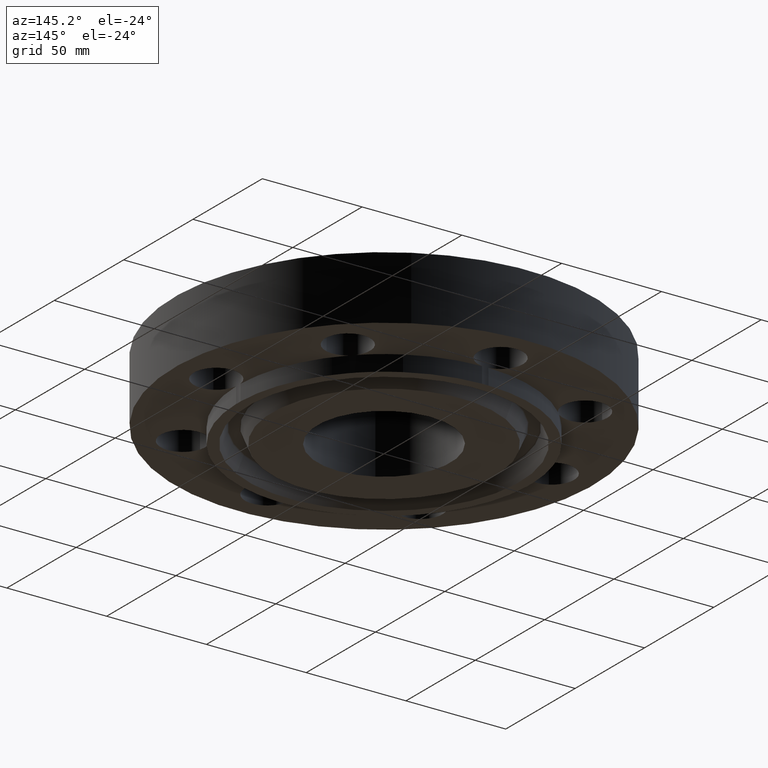
[diagram: clean part render]
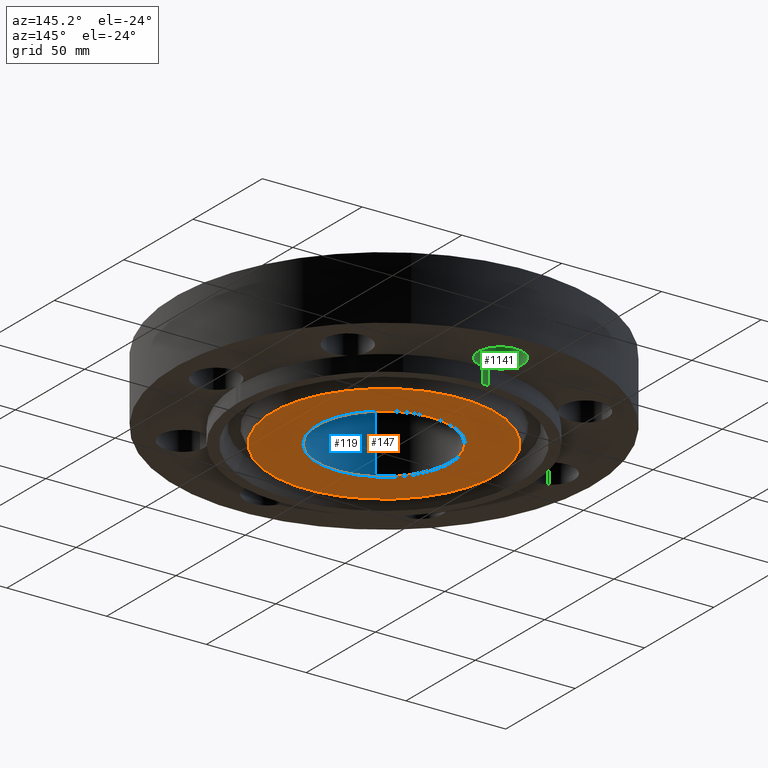
[diagram: same view with three faces highlighted in distinct colors, each labeled with its STEP entity id]
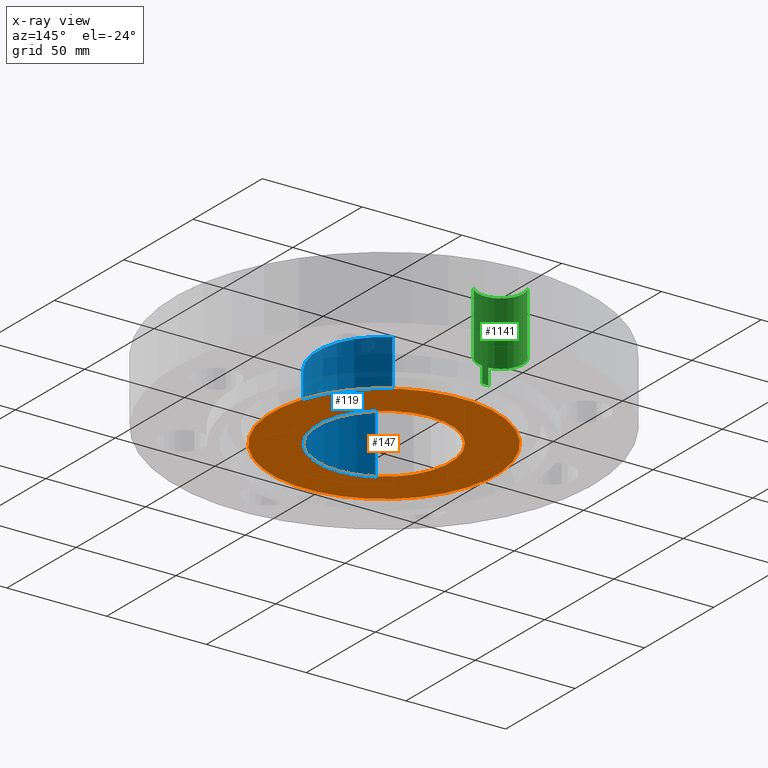
[diagram: x-ray of the same camera — body ghosted, the three highlighted faces saturated]
A machine part, auxiliary view with three faces highlighted in distinct colors.
The next image is the same camera in x-ray (body ghosted, the three faces saturated) — at least one of them is partly hidden behind the body in this view.
Their STEP definitions:

[orange] entity #147 — the highlighted planar face has unit normal (0, 0, -1).
#91=AXIS2_PLACEMENT_3D('Circle Axis2P3D',#89,#90,$) ;
#110=AXIS2_PLACEMENT_3D('Circle Axis2P3D',#108,#109,$) ;
#123=AXIS2_PLACEMENT_3D('Plane Axis2P3D',#120,#121,#122) ;
#127=AXIS2_PLACEMENT_3D('Circle Axis2P3D',#125,#126,$) ;
#136=AXIS2_PLACEMENT_3D('Circle Axis2P3D',#134,#135,$) ;
#86=CARTESIAN_POINT('Vertex',(-0.629006306651,-1.1513883212,-0.313000000001)) ;
#89=CARTESIAN_POINT('Axis2P3D Location',(0.,0.,-0.313000000001)) ;
#93=CARTESIAN_POINT('Vertex',(0.629006306651,1.1513883212,-0.313000000001)) ;
#108=CARTESIAN_POINT('Axis2P3D Location',(0.,0.,-0.313000000001)) ;
#120=CARTESIAN_POINT('Axis2P3D Location',(0.,1.31200000001,-0.313000000001)) ;
#125=CARTESIAN_POINT('Axis2P3D Location',(8.39223703654E-016,-2.79741234551E-016,-0.313000000001)) ;
#129=CARTESIAN_POINT('Vertex',(-1.05617446155,1.93331438385,-0.313000000001)) ;
#131=CARTESIAN_POINT('Vertex',(1.05617446155,-1.93331438385,-0.313000000001)) ;
#134=CARTESIAN_POINT('Axis2P3D Location',(0.,0.,-0.313000000001)) ;
#90=DIRECTION('Axis2P3D Direction',(0.,0.,-0.0393700787402)) ;
#109=DIRECTION('Axis2P3D Direction',(0.,0.,-0.0393700787402)) ;
#121=DIRECTION('Axis2P3D Direction',(0.,0.,-0.0393700787402)) ;
#122=DIRECTION('Axis2P3D XDirection',(0.0393700787402,0.,0.)) ;
#126=DIRECTION('Axis2P3D Direction',(0.,0.,-0.0393700787402)) ;
#135=DIRECTION('Axis2P3D Direction',(0.,0.,-0.0393700787402)) ;
#140=ORIENTED_EDGE('',*,*,#133,.T.) ;
#141=ORIENTED_EDGE('',*,*,#138,.T.) ;
#144=ORIENTED_EDGE('',*,*,#112,.F.) ;
#145=ORIENTED_EDGE('',*,*,#95,.F.) ;
#146=FACE_BOUND('',#143,.T.) ;
#147=ADVANCED_FACE('PartBody',(#142,#146),#124,.T.) ;
#92=CIRCLE('generated circle',#91,1.31200000001) ;
#111=CIRCLE('generated circle',#110,1.31200000001) ;
#128=CIRCLE('generated circle',#127,2.20300000001) ;
#137=CIRCLE('generated circle',#136,2.20300000001) ;
#95=EDGE_CURVE('',#87,#94,#92,.T.) ;
#112=EDGE_CURVE('',#94,#87,#111,.T.) ;
#133=EDGE_CURVE('',#130,#132,#128,.T.) ;
#138=EDGE_CURVE('',#132,#130,#137,.T.) ;
#139=EDGE_LOOP('',(#140,#141)) ;
#143=EDGE_LOOP('',(#144,#145)) ;
#142=FACE_OUTER_BOUND('',#139,.T.) ;
#124=PLANE('',#123) ;
#87=VERTEX_POINT('',#86) ;
#94=VERTEX_POINT('',#93) ;
#130=VERTEX_POINT('',#129) ;
#132=VERTEX_POINT('',#131) ;

[blue] entity #119 — the highlighted cylindrical surface (partial cylindrical patch) has radius 33.3248 mm, axis along (0, 0, -1).
#60=AXIS2_PLACEMENT_3D('Circle Axis2P3D',#58,#59,$) ;
#80=AXIS2_PLACEMENT_3D('Cylinder Axis2P3D',#77,#78,#79) ;
#110=AXIS2_PLACEMENT_3D('Circle Axis2P3D',#108,#109,$) ;
#58=CARTESIAN_POINT('Axis2P3D Location',(-3.1470888887E-016,-6.99353086378E-017,1.)) ;
#62=CARTESIAN_POINT('Vertex',(0.629006306651,1.1513883212,1.)) ;
#64=CARTESIAN_POINT('Vertex',(-0.629006306651,-1.1513883212,1.)) ;
#77=CARTESIAN_POINT('Axis2P3D Location',(0.,0.,0.748500000003)) ;
#82=CARTESIAN_POINT('Line Origine',(-0.629006306651,-1.1513883212,0.343500000001)) ;
#86=CARTESIAN_POINT('Vertex',(-0.629006306651,-1.1513883212,-0.313000000001)) ;
#93=CARTESIAN_POINT('Vertex',(0.629006306651,1.1513883212,-0.313000000001)) ;
#96=CARTESIAN_POINT('Line Origine',(0.629006306651,1.1513883212,0.343500000001)) ;
#108=CARTESIAN_POINT('Axis2P3D Location',(0.,0.,-0.313000000001)) ;
#59=DIRECTION('Axis2P3D Direction',(0.,0.,-0.0393700787402)) ;
#78=DIRECTION('Axis2P3D Direction',(0.,0.,-0.0393700787402)) ;
#79=DIRECTION('Axis2P3D XDirection',(0.0188750212049,0.0345504945626,0.)) ;
#83=DIRECTION('Vector Direction',(0.,0.,-0.0393700787402)) ;
#97=DIRECTION('Vector Direction',(0.,0.,-0.0393700787402)) ;
#109=DIRECTION('Axis2P3D Direction',(0.,0.,-0.0393700787402)) ;
#84=VECTOR('Line Direction',#83,0.0393700787402) ;
#98=VECTOR('Line Direction',#97,0.0393700787402) ;
#114=ORIENTED_EDGE('',*,*,#100,.T.) ;
#115=ORIENTED_EDGE('',*,*,#112,.T.) ;
#116=ORIENTED_EDGE('',*,*,#88,.F.) ;
#117=ORIENTED_EDGE('',*,*,#66,.F.) ;
#119=ADVANCED_FACE('PartBody',(#118),#81,.F.) ;
#61=CIRCLE('generated circle',#60,1.31200000001) ;
#111=CIRCLE('generated circle',#110,1.31200000001) ;
#81=CYLINDRICAL_SURFACE('generated cylinder',#80,1.31200000001) ;
#66=EDGE_CURVE('',#63,#65,#61,.T.) ;
#88=EDGE_CURVE('',#65,#87,#85,.T.) ;
#100=EDGE_CURVE('',#63,#94,#99,.T.) ;
#112=EDGE_CURVE('',#94,#87,#111,.T.) ;
#113=EDGE_LOOP('',(#114,#115,#116,#117)) ;
#118=FACE_OUTER_BOUND('',#113,.T.) ;
#85=LINE('Line',#82,#84) ;
#99=LINE('Line',#96,#98) ;
#63=VERTEX_POINT('',#62) ;
#65=VERTEX_POINT('',#64) ;
#87=VERTEX_POINT('',#86) ;
#94=VERTEX_POINT('',#93) ;

[green] entity #1141 — the highlighted cylindrical surface (edge-blend (fillet) strip) has radius 11.176 mm, axis along (0, -0, -1).
#293=AXIS2_PLACEMENT_3D('Circle Axis2P3D',#291,#292,$) ;
#670=AXIS2_PLACEMENT_3D('Circle Axis2P3D',#668,#669,$) ;
#684=AXIS2_PLACEMENT_3D('Circle Axis2P3D',#682,#683,$) ;
#1020=AXIS2_PLACEMENT_3D('Cylinder Axis2P3D',#1017,#1018,#1019) ;
#1128=AXIS2_PLACEMENT_3D('Circle Axis2P3D',#1126,#1127,$) ;
#288=CARTESIAN_POINT('Vertex',(-0.0616409036851,2.87433912388,-0.313000000001)) ;
#291=CARTESIAN_POINT('Axis2P3D Location',(-3.49676543189E-017,3.31000000001,-0.313000000001)) ;
#295=CARTESIAN_POINT('Vertex',(0.0616409036851,2.87433912388,-0.313000000001)) ;
#542=CARTESIAN_POINT('Vertex',(-0.0616409036851,2.87433912388,2.79741234551E-016)) ;
#545=CARTESIAN_POINT('Line Origine',(-0.0616409036851,2.87433912388,-0.156500000001)) ;
#566=CARTESIAN_POINT('Vertex',(0.0616409036851,2.87433912388,2.79741234551E-016)) ;
#576=CARTESIAN_POINT('Line Origine',(0.0616409036851,2.87433912388,-0.156500000001)) ;
#668=CARTESIAN_POINT('Axis2P3D Location',(-8.74191357973E-017,3.31000000001,0.)) ;
#672=CARTESIAN_POINT('Vertex',(0.386136327233,3.09905276303,0.)) ;
#679=CARTESIAN_POINT('Vertex',(-0.386136327233,3.520947237,0.)) ;
#682=CARTESIAN_POINT('Axis2P3D Location',(-8.74191357973E-017,3.31000000001,0.)) ;
#1017=CARTESIAN_POINT('Axis2P3D Location',(0.,3.31000000001,1.24606299213)) ;
#1022=CARTESIAN_POINT('Line Origine',(-0.386136327233,3.520947237,0.468500000002)) ;
#1026=CARTESIAN_POINT('Vertex',(-0.386136327233,3.520947237,1.25000000001)) ;
#1029=CARTESIAN_POINT('Line Origine',(0.386136327233,3.09905276303,0.468500000002)) ;
#1033=CARTESIAN_POINT('Vertex',(0.386136327233,3.09905276303,1.25000000001)) ;
#1126=CARTESIAN_POINT('Axis2P3D Location',(0.,3.31000000001,1.25000000001)) ;
#292=DIRECTION('Axis2P3D Direction',(0.,0.,-0.0393700787402)) ;
#546=DIRECTION('Vector Direction',(0.,0.,-0.0393700787402)) ;
#577=DIRECTION('Vector Direction',(0.,0.,-0.0393700787402)) ;
#669=DIRECTION('Axis2P3D Direction',(0.,0.,-0.0393700787402)) ;
#683=DIRECTION('Axis2P3D Direction',(0.,0.,-0.0393700787402)) ;
#1018=DIRECTION('Axis2P3D Direction',(0.,-0.,-0.0393700787402)) ;
#1019=DIRECTION('Axis2P3D XDirection',(0.0345504945626,-0.0188750212049,0.)) ;
#1023=DIRECTION('Vector Direction',(0.,0.,-0.0393700787402)) ;
#1030=DIRECTION('Vector Direction',(0.,0.,-0.0393700787402)) ;
#1127=DIRECTION('Axis2P3D Direction',(0.,-0.,-0.0393700787402)) ;
#547=VECTOR('Line Direction',#546,0.0393700787402) ;
#578=VECTOR('Line Direction',#577,0.0393700787402) ;
#1024=VECTOR('Line Direction',#1023,0.0393700787402) ;
#1031=VECTOR('Line Direction',#1030,0.0393700787402) ;
#1132=ORIENTED_EDGE('',*,*,#1035,.F.) ;
#1133=ORIENTED_EDGE('',*,*,#674,.T.) ;
#1134=ORIENTED_EDGE('',*,*,#580,.T.) ;
#1135=ORIENTED_EDGE('',*,*,#297,.T.) ;
#1136=ORIENTED_EDGE('',*,*,#549,.F.) ;
#1137=ORIENTED_EDGE('',*,*,#686,.T.) ;
#1138=ORIENTED_EDGE('',*,*,#1028,.T.) ;
#1139=ORIENTED_EDGE('',*,*,#1130,.F.) ;
#1141=ADVANCED_FACE('PartBody',(#1140),#1021,.F.) ;
#294=CIRCLE('generated circle',#293,0.440000000002) ;
#671=CIRCLE('generated circle',#670,0.440000000002) ;
#685=CIRCLE('generated circle',#684,0.440000000002) ;
#1129=CIRCLE('generated circle',#1128,0.440000000002) ;
#1021=CYLINDRICAL_SURFACE('generated cylinder',#1020,0.440000000002) ;
#297=EDGE_CURVE('',#296,#289,#294,.T.) ;
#549=EDGE_CURVE('',#543,#289,#548,.T.) ;
#580=EDGE_CURVE('',#567,#296,#579,.T.) ;
#674=EDGE_CURVE('',#673,#567,#671,.T.) ;
#686=EDGE_CURVE('',#543,#680,#685,.T.) ;
#1028=EDGE_CURVE('',#680,#1027,#1025,.F.) ;
#1035=EDGE_CURVE('',#673,#1034,#1032,.F.) ;
#1130=EDGE_CURVE('',#1034,#1027,#1129,.T.) ;
#1131=EDGE_LOOP('',(#1132,#1133,#1134,#1135,#1136,#1137,#1138,#1139)) ;
#1140=FACE_OUTER_BOUND('',#1131,.T.) ;
#548=LINE('Line',#545,#547) ;
#579=LINE('Line',#576,#578) ;
#1025=LINE('Line',#1022,#1024) ;
#1032=LINE('Line',#1029,#1031) ;
#289=VERTEX_POINT('',#288) ;
#296=VERTEX_POINT('',#295) ;
#543=VERTEX_POINT('',#542) ;
#567=VERTEX_POINT('',#566) ;
#673=VERTEX_POINT('',#672) ;
#680=VERTEX_POINT('',#679) ;
#1027=VERTEX_POINT('',#1026) ;
#1034=VERTEX_POINT('',#1033) ;